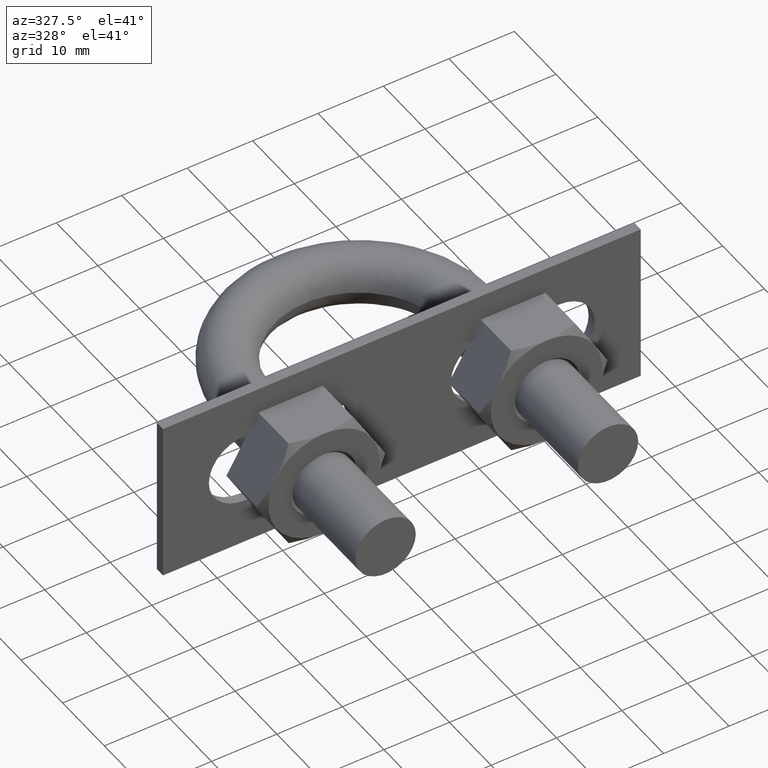
[diagram: clean part render]
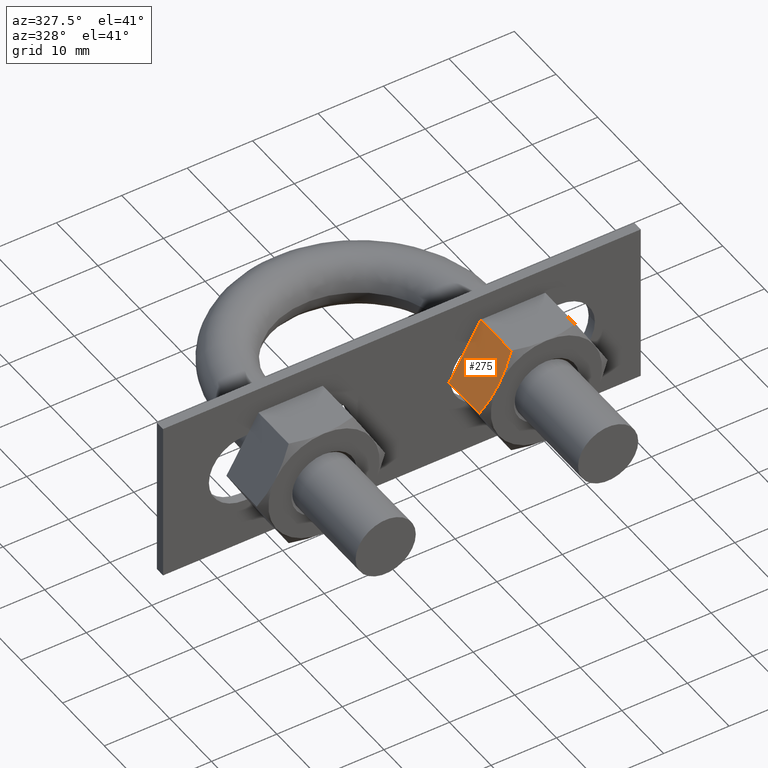
[diagram: same view with one face highlighted and labeled with its STEP entity id]
A machine part, auxiliary view. The second image highlights one B-rep face of the part: STEP entity #275.
In plain terms, the highlighted planar face has unit normal (0.866, -0, -0.5).
Its self-contained STEP definition (entity closure, byte-faithful):
#275 = ADVANCED_FACE( '', ( #419 ), #420, .F. );
#419 = FACE_OUTER_BOUND( '', #739, .T. );
#420 = PLANE( '', #740 );
#739 = EDGE_LOOP( '', ( #1195, #1196, #1197, #1198, #1199 ) );
#740 = AXIS2_PLACEMENT_3D( '', #1200, #1201, #1202 );
#1195 = ORIENTED_EDGE( '', *, *, #1435, .F. );
#1196 = ORIENTED_EDGE( '', *, *, #1440, .F. );
#1197 = ORIENTED_EDGE( '', *, *, #1434, .F. );
#1198 = ORIENTED_EDGE( '', *, *, #1431, .F. );
#1199 = ORIENTED_EDGE( '', *, *, #1441, .F. );
#1200 = CARTESIAN_POINT( '', ( 7.18504542377816, -7.20000000000000, -3.67977546610708E-032 ) );
#1201 = DIRECTION( '', ( 0.866025403784399, -5.30270106022983E-017, -0.500000000000069 ) );
#1202 = DIRECTION( '', ( -0.500000000000069, 3.06151588455636E-017, -0.866025403784399 ) );
#1431 = EDGE_CURVE( '', #1683, #1665, #1685, .T. );
#1434 = EDGE_CURVE( '', #1665, #1686, #1690, .F. );
#1435 = EDGE_CURVE( '', #1643, #1691, #1692, .T. );
#1440 = EDGE_CURVE( '', #1686, #1643, #1698, .T. );
#1441 = EDGE_CURVE( '', #1691, #1683, #1699, .T. );
#1643 = VERTEX_POINT( '', #2055 );
#1665 = VERTEX_POINT( '', #2092 );
#1683 = VERTEX_POINT( '', #2114 );
#1685 = LINE( '', #2116, #2117 );
#1686 = VERTEX_POINT( '', #2118 );
#1690 = LINE( '', #2123, #2124 );
#1691 = VERTEX_POINT( '', #2125 );
#1692 = B_SPLINE_CURVE_WITH_KNOTS( '', 3, ( #2126, #2127, #2128, #2129, #2130, #2131, #2132, #2133 ), .UNSPECIFIED., .F., .F., ( 4, 2, 2, 4 ), ( 0.00493529902949312, 0.00616408349151704, 0.00739286795354095, 0.00985043687758878 ), .UNSPECIFIED. );
#1698 = B_SPLINE_CURVE_WITH_KNOTS( '', 3, ( #2150, #2151, #2152, #2153, #2154, #2155 ), .UNSPECIFIED., .F., .F., ( 4, 2, 4 ), ( 7.17194508351915E-007, 0.00246800811200074, 0.00493529902949312 ), .UNSPECIFIED. );
#1699 = LINE( '', #2156, #2157 );
#2055 = CARTESIAN_POINT( '', ( 9.63878406783362, -15.1999999999985, 4.25000000000000 ) );
#2092 = CARTESIAN_POINT( '', ( 12.0775337474846, -7.20000000000000, 8.47403835209862 ) );
#2114 = CARTESIAN_POINT( '', ( 7.20003438818262, -7.20000000000000, 0.0259616479013787 ) );
#2116 = CARTESIAN_POINT( '', ( 7.18878406783407, -7.20000000000000, 0.00647552145624969 ) );
#2117 = VECTOR( '', #2437, 1000.00000000008 );
#2118 = CARTESIAN_POINT( '', ( 12.0775337474846, -14.4494446500522, 8.47403835209862 ) );
#2123 = CARTESIAN_POINT( '', ( 12.0775337474846, -7.20000000000000, 8.47403835209862 ) );
#2124 = VECTOR( '', #2442, 999.999999999939 );
#2125 = CARTESIAN_POINT( '', ( 7.20003438818262, -14.4494446500522, 0.0259616479013788 ) );
#2126 = CARTESIAN_POINT( '', ( 9.63878406783433, -15.1999999999991, 4.24999999999968 ) );
#2127 = CARTESIAN_POINT( '', ( 9.43192925395884, -15.1999999999991, 3.89171695257720 ) );
#2128 = CARTESIAN_POINT( '', ( 9.22404065703297, -15.1822887858771, 3.53164334038744 ) );
#2129 = CARTESIAN_POINT( '', ( 8.81278456700540, -15.1136979023192, 2.81932689753770 ) );
#2130 = CARTESIAN_POINT( '', ( 8.60852350883576, -15.0628885136651, 2.46553636678016 ) );
#2131 = CARTESIAN_POINT( '', ( 7.99935022544374, -14.8668508935335, 1.41041728933184 ) );
#2132 = CARTESIAN_POINT( '', ( 7.59803450223044, -14.6781749556140, 0.715318066850275 ) );
#2133 = CARTESIAN_POINT( '', ( 7.20003438818261, -14.4494446500524, 0.0259616479013404 ) );
#2150 = CARTESIAN_POINT( '', ( 12.0775337474860, -14.4494446500524, 8.47403835209787 ) );
#2151 = CARTESIAN_POINT( '', ( 11.6784819807139, -14.6787793394834, 7.78286041719862 ) );
#2152 = CARTESIAN_POINT( '', ( 11.2765478875211, -14.8675470520185, 7.08669014649468 ) );
#2153 = CARTESIAN_POINT( '', ( 10.4644024261525, -15.1285849074231, 5.68001294426800 ) );
#2154 = CARTESIAN_POINT( '', ( 10.0541303057530, -15.1999999999991, 4.96940078680728 ) );
#2155 = CARTESIAN_POINT( '', ( 9.63878406783433, -15.1999999999991, 4.24999999999967 ) );
#2156 = CARTESIAN_POINT( '', ( 7.20003438818262, -7.20000000000000, 0.0259616479013807 ) );
#2157 = VECTOR( '', #2447, 999.999999999939 );
#2437 = DIRECTION( '', ( 0.499999999999931, -3.06151588455552E-017, 0.866025403784478 ) );
#2442 = DIRECTION( '', ( 6.12303176911189E-017, 1.00000000000000, 0.000000000000000 ) );
#2447 = DIRECTION( '', ( 6.12303176911189E-017, 1.00000000000000, 0.000000000000000 ) );